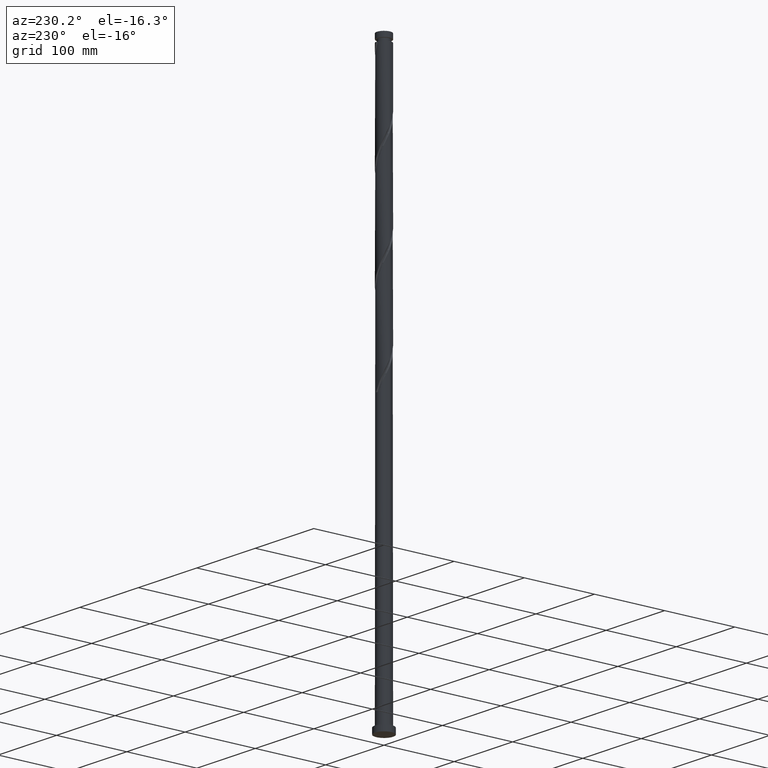
[diagram: clean part render]
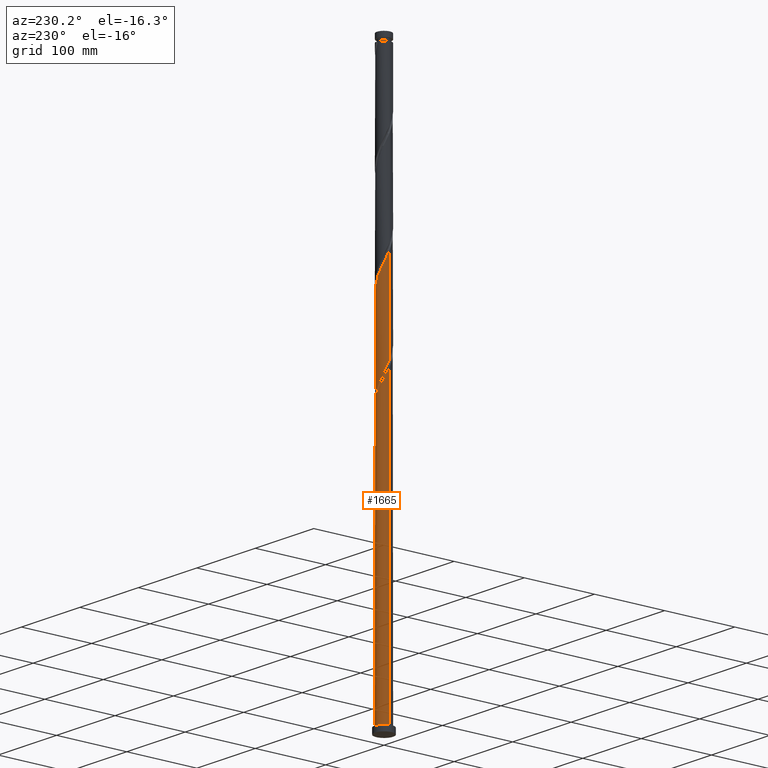
[diagram: same view with one face highlighted and labeled with its STEP entity id]
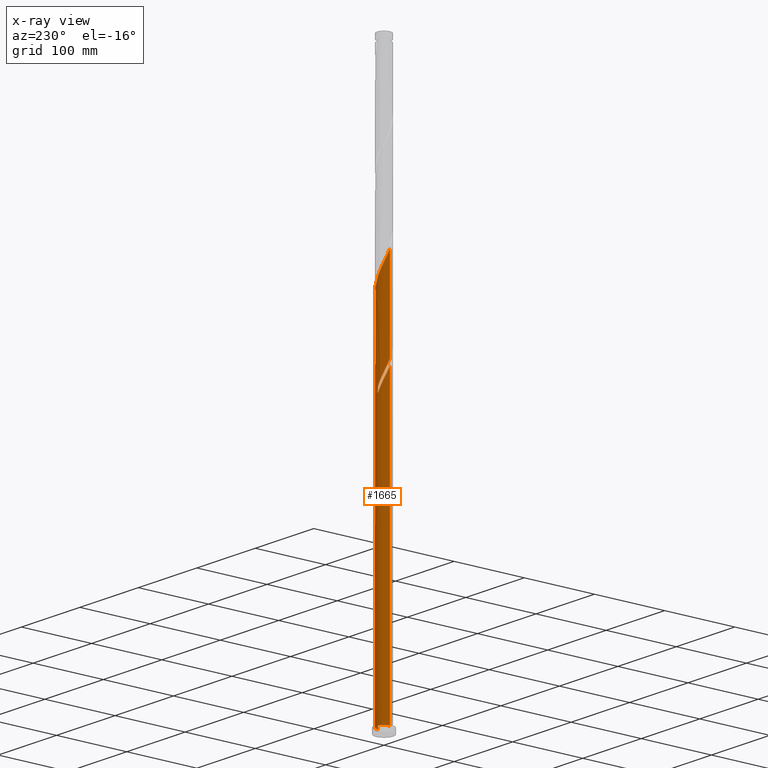
[diagram: x-ray of the same camera — body ghosted, the highlighted face saturated]
A machine part, auxiliary view. The second image highlights one B-rep face of the part: STEP entity #1665.
The next image is the same camera in x-ray: the body ghosted, the highlighted face saturated — about 0% of this face is hidden behind the body in this view.
In plain terms, the highlighted cylindrical surface (edge-blend (fillet) strip) has radius 10 mm, axis along (-0, -0, -1).
Its self-contained STEP definition (entity closure, byte-faithful):
#37 =( BOUNDED_CURVE ( )  B_SPLINE_CURVE ( 2, ( #956, #58, #1328, #681, #1006, #278, #119, #2131, #1935, #874, #645, #1585, #1925, #1185, #1195, #291, #2162, #105, #1391, #499, #486, #837, #1767 ),
 .UNSPECIFIED., .F., .T. ) 
 B_SPLINE_CURVE_WITH_KNOTS ( ( 3, 2, 2, 2, 2, 2, 2, 2, 2, 2, 2, 3 ),
 ( 0.9295295809515954355, 0.9342105263157894912, 0.9407894736842105088, 0.9473684210526315264, 0.9539473684210526550, 0.9605263157894736725, 0.9671052631578946901, 0.9736842105263158187, 0.9802631578947368363, 0.9868421052631578538, 0.9934210526315789824, 1.000000000000000000 ),
 .UNSPECIFIED. ) 
 CURVE ( )  GEOMETRIC_REPRESENTATION_ITEM ( )  RATIONAL_B_SPLINE_CURVE ( ( 0.9078162034606143127, 0.9068816855934214161, 0.9090909090909431445, 0.9059859027333700965, 0.9090909090909431445, 0.9059859027333700965, 0.9090909090909431445, 0.9059859027333700965, 0.9090909090909431445, 0.9059859027333700965, 0.9090909090909431445, 0.9059859027333700965, 0.9090909090909431445, 0.9059859027333700965, 0.9090909090909431445, 0.9059859027333700965, 0.9090909090909431445, 0.9059859027333700965, 0.9090909090909431445, 0.9059859027333700965, 0.9090909090909431445, 0.9059859027333700965, 0.9090909090909431445 ) ) 
 REPRESENTATION_ITEM ( '' )  );
#39 = VERTEX_POINT ( 'NONE', #1576 ) ;
#47 = DIRECTION ( 'NONE',  ( 0.000000000000000000, 0.000000000000000000, 1.000000000000000000 ) ) ;
#56 = CARTESIAN_POINT ( 'NONE',  ( 9.930858854084291920, 1.173900515484962215, 487.1440430362561642 ) ) ;
#58 = CARTESIAN_POINT ( 'NONE',  ( -10.00000000000000355, 0.5889864175343263453, 425.2331674211055770 ) ) ;
#66 = CARTESIAN_POINT ( 'NONE',  ( 7.115818394811946668, 7.026032206875813202, 501.1791307555545245 ) ) ;
#76 = CARTESIAN_POINT ( 'NONE',  ( -1.989974874213248146, 9.800000000000007816, 522.2317623345016955 ) ) ;
#84 = DIRECTION ( 'NONE',  ( -0.000000000000000000, -0.000000000000000000, -1.000000000000000000 ) ) ;
#105 = CARTESIAN_POINT ( 'NONE',  ( -2.121495232885088900, 9.807439782529289829, 397.6703588257300339 ) ) ;
#108 = AXIS2_PLACEMENT_3D ( 'NONE', #2216, #563, #349 ) ;
#117 = CARTESIAN_POINT ( 'NONE',  ( -10.00000000000000178, 0.000000000000000000, 8.000000000000000000 ) ) ;
#119 = CARTESIAN_POINT ( 'NONE',  ( -9.011612654811246514, 4.334839946254740894, 416.9686044397650448 ) ) ;
#126 = CARTESIAN_POINT ( 'NONE',  ( -9.292644579133634508, 3.694151692323763836, 409.9510605801158931 ) ) ;
#139 = CARTESIAN_POINT ( 'NONE',  ( -8.129196827142978421, 5.882412435103557158, 404.6879026853790151 ) ) ;
#210 = CARTESIAN_POINT ( 'NONE',  ( 0.000000000000000000, 0.000000000000000000, 8.000000000000000000 ) ) ;
#238 = CARTESIAN_POINT ( 'NONE',  ( -2.802026026230766576, 9.635105980705032991, 523.9861482994141397 ) ) ;
#249 = CARTESIAN_POINT ( 'NONE',  ( 10.00000000000000178, 1.224646799147353454E-15, 800.0000000000000000 ) ) ;
#256 = CARTESIAN_POINT ( 'NONE',  ( 10.00000000000000178, 1.224646799147353454E-15, 8.000000000000000000 ) ) ;
#258 = CARTESIAN_POINT ( 'NONE',  ( -10.00000000000001243, 0.2384733424516591593, 550.8068404486064082 ) ) ;
#277 = LINE ( 'NONE', #836, #1109 ) ;
#278 = CARTESIAN_POINT ( 'NONE',  ( -9.370807733603871981, 3.588116432185856741, 418.7229904046773754 ) ) ;
#282 = ORIENTED_EDGE ( 'NONE', *, *, #720, .F. ) ;
#291 = CARTESIAN_POINT ( 'NONE',  ( -3.706812335779576806, 9.324492448300048864, 401.1791307555547519 ) ) ;
#311 = CARTESIAN_POINT ( 'NONE',  ( -9.949134091119727685, 1.304357293080274482, 415.2142184748527711 ) ) ;
#349 = DIRECTION ( 'NONE',  ( -1.000000000000000000, 0.000000000000000000, 0.000000000000000000 ) ) ;
#397 = EDGE_CURVE ( 'NONE', #514, #1794, #400, .T. ) ;
#400 = LINE ( 'NONE', #1306, #835 ) ;
#419 = AXIS2_PLACEMENT_3D ( 'NONE', #1552, #1736, #1397 ) ;
#420 = CARTESIAN_POINT ( 'NONE',  ( 3.706812335779582135, 9.324492448300055969, 509.9510605801158931 ) ) ;
#424 = CARTESIAN_POINT ( 'NONE',  ( -3.575861195418844840, 9.338801674256604457, 392.4072009309930991 ) ) ;
#439 = CARTESIAN_POINT ( 'NONE',  ( -3.575861195418844840, 9.338801674256604457, 525.7405342643263566 ) ) ;
#448 = CARTESIAN_POINT ( 'NONE',  ( 10.00000000000001421, -3.433603888114613474E-15, 484.6464968003797935 ) ) ;
#454 = CARTESIAN_POINT ( 'NONE',  ( -4.349696364606922216, 9.042497367808174147, 394.1615868959053728 ) ) ;
#460 = CARTESIAN_POINT ( 'NONE',  ( 6.533624767495038732, 7.615665729840554121, 502.9335167204667982 ) ) ;
#479 = CARTESIAN_POINT ( 'NONE',  ( 10.00000000000001421, -3.433603888114613474E-15, 484.6464968003797935 ) ) ;
#486 = CARTESIAN_POINT ( 'NONE',  ( 0.3498072259164571318, 9.993879872436764344, 392.4072009309930991 ) ) ;
#491 = CARTESIAN_POINT ( 'NONE',  ( -7.050111913419860876, 7.140205817716167580, 401.1791307555545814 ) ) ;
#499 = CARTESIAN_POINT ( 'NONE',  ( -0.4783092703628204490, 10.02286572557855493, 394.1615868959054865 ) ) ;
#514 = VERTEX_POINT ( 'NONE', #1688 ) ;
#542 = EDGE_CURVE ( 'NONE', #1594, #1086, #2094, .T. ) ;
#543 = CARTESIAN_POINT ( 'NONE',  ( 1.989974874213252809, 9.800000000000000711, 388.8984290011685516 ) ) ;
#563 = DIRECTION ( 'NONE',  ( 0.000000000000000000, -0.000000000000000000, -1.000000000000000000 ) ) ;
#582 = ORIENTED_EDGE ( 'NONE', *, *, #653, .F. ) ;
#599 = CARTESIAN_POINT ( 'NONE',  ( -1.177923722195730827, 9.964894019294989747, 520.4773763695895923 ) ) ;
#612 = CARTESIAN_POINT ( 'NONE',  ( -7.589654370281420093, 6.511309126409864589, 536.2668500538001126 ) ) ;
#623 = CARTESIAN_POINT ( 'NONE',  ( -9.949134091119727685, 1.304357293080274482, 548.5475518081860855 ) ) ;
#627 = CARTESIAN_POINT ( 'NONE',  ( -10.00000000000000178, -2.696125487797833641E-14, 426.4836945352908515 ) ) ;
#633 = CARTESIAN_POINT ( 'NONE',  ( 9.011612654811258949, 4.334839946254741783, 494.1615868959053159 ) ) ;
#645 = CARTESIAN_POINT ( 'NONE',  ( -7.115818394811933345, 7.026032206875808761, 409.9510605801158931 ) ) ;
#653 = EDGE_CURVE ( 'NONE', #1594, #514, #997, .T. ) ;
#681 = CARTESIAN_POINT ( 'NONE',  ( -9.833586684089031138, 1.996794941299505632, 422.2317623345019229 ) ) ;
#720 = EDGE_CURVE ( 'NONE', #1639, #768, #277, .T. ) ;
#737 = ORIENTED_EDGE ( 'NONE', *, *, #2240, .F. ) ;
#768 = VERTEX_POINT ( 'NONE', #117 ) ;
#796 = CARTESIAN_POINT ( 'NONE',  ( -0.3498072259164496933, 9.993879872436775003, 518.7229904046772617 ) ) ;
#807 = CARTESIAN_POINT ( 'NONE',  ( -9.598750715611075179, 2.924141209081439818, 545.0387798783615381 ) ) ;
#815 = CARTESIAN_POINT ( 'NONE',  ( -8.557867634899585241, 5.173287305334823394, 539.7756219836247737 ) ) ;
#835 = VECTOR ( 'NONE', #1465, 1000.000000000000000 ) ;
#836 = CARTESIAN_POINT ( 'NONE',  ( -10.00000000000000178, 0.000000000000000000, 800.0000000000000000 ) ) ;
#837 = CARTESIAN_POINT ( 'NONE',  ( 1.177923722195735934, 9.964894019294979088, 390.6528149660808822 ) ) ;
#853 = CARTESIAN_POINT ( 'NONE',  ( -5.064207344787845066, 8.622865183278527468, 395.9159728608176465 ) ) ;
#874 = CARTESIAN_POINT ( 'NONE',  ( -7.698012022128840393, 6.436398683911070506, 411.7054465450283374 ) ) ;
#880 = CARTESIAN_POINT ( 'NONE',  ( -5.778718324968768805, 8.203232998748884341, 397.6703588257299202 ) ) ;
#912 = EDGE_CURVE ( 'NONE', #39, #2366, #1174, .T. ) ;
#921 = ORIENTED_EDGE ( 'NONE', *, *, #397, .F. ) ;
#950 = AXIS2_PLACEMENT_3D ( 'NONE', #210, #47, #1666 ) ;
#953 = CARTESIAN_POINT ( 'NONE',  ( 4.448914798436082840, 8.955844857759466038, 508.1966746152035626 ) ) ;
#956 = CARTESIAN_POINT ( 'NONE',  ( -10.00000000000000178, -2.696125487797833641E-14, 426.4836945352908515 ) ) ;
#977 = CARTESIAN_POINT ( 'NONE',  ( 9.370807733603886192, 3.588116432185851856, 492.4072009309930422 ) ) ;
#986 = CARTESIAN_POINT ( 'NONE',  ( -10.00000000000001421, 1.612300956158166349E-15, 551.3131634670464791 ) ) ;
#997 =( BOUNDED_CURVE ( )  B_SPLINE_CURVE ( 2, ( #448, #2106, #56, #2086, #1894, #977, #633, #1923, #2063, #1698, #66, #460, #2077, #1710, #953, #420, #1885, #1175, #1505, #2246, #796, #599, #76, #238, #439, #1516, #1911, #1337, #2258, #1347, #612, #1720, #815, #1527, #1902, #807, #2269, #623, #1164, #258, #986 ),
 .UNSPECIFIED., .F., .T. ) 
 B_SPLINE_CURVE_WITH_KNOTS ( ( 3, 2, 2, 2, 2, 2, 2, 2, 2, 2, 2, 2, 2, 2, 2, 2, 2, 2, 2, 2, 3 ),
 ( 0.1795295809515957408, 0.1842105263157894912, 0.1907894736842105088, 0.1973684210526315264, 0.2039473684210526550, 0.2105263157894736725, 0.2171052631578946901, 0.2236842105263158187, 0.2302631578947368363, 0.2368421052631578538, 0.2434210526315789824, 0.2500000000000000000, 0.2565789473684210176, 0.2631578947368421462, 0.2697368421052631637, 0.2763157894736841813, 0.2828947368421053099, 0.2894736842105263275, 0.2960526315789473450, 0.3026315789473684736, 0.3045295809515957131 ),
 .UNSPECIFIED. ) 
 CURVE ( )  GEOMETRIC_REPRESENTATION_ITEM ( )  RATIONAL_B_SPLINE_CURVE ( ( 0.9078162034606180875, 0.9068816855934254129, 0.9090909090909469192, 0.9059859027333740933, 0.9090909090909469192, 0.9059859027333740933, 0.9090909090909469192, 0.9059859027333740933, 0.9090909090909469192, 0.9059859027333740933, 0.9090909090909469192, 0.9059859027333740933, 0.9090909090909469192, 0.9059859027333740933, 0.9090909090909469192, 0.9059859027333740933, 0.9090909090909469192, 0.9059859027333740933, 0.9090909090909469192, 0.9059859027333740933, 0.9090909090909469192, 0.9059859027333740933, 0.9090909090909469192, 0.9059859027333740933, 0.9090909090909469192, 0.9059859027333740933, 0.9090909090909469192, 0.9059859027333740933, 0.9090909090909469192, 0.9059859027333740933, 0.9090909090909469192, 0.9059859027333740933, 0.9090909090909469192, 0.9059859027333740933, 0.9090909090909469192, 0.9059859027333740933, 0.9090909090909469192, 0.9059859027333740933, 0.9090909090909469192, 0.9081951262308954886, 0.9078162034606180875 ) ) 
 REPRESENTATION_ITEM ( '' )  );
#1006 = CARTESIAN_POINT ( 'NONE',  ( -9.602197208846448007, 2.792455686742680854, 420.4773763695895923 ) ) ;
#1010 = CARTESIAN_POINT ( 'NONE',  ( -7.589654370281420093, 6.511309126409864589, 402.9335167204667982 ) ) ;
#1070 = CARTESIAN_POINT ( 'NONE',  ( -9.988632557599636641, 0.4766756017049241234, 416.9686044397649880 ) ) ;
#1086 = VERTEX_POINT ( 'NONE', #256 ) ;
#1109 = VECTOR ( 'NONE', #1405, 1000.000000000000000 ) ;
#1164 = CARTESIAN_POINT ( 'NONE',  ( -9.988632557599636641, 0.4766756017049241234, 550.3019377730983024 ) ) ;
#1174 = CIRCLE ( 'NONE', #108, 10.00000000000000178 ) ;
#1175 = CARTESIAN_POINT ( 'NONE',  ( 2.121495232885097781, 9.807439782529295158, 513.4598325099402700 ) ) ;
#1185 = CARTESIAN_POINT ( 'NONE',  ( -5.191017261092578217, 8.587197267218870778, 404.6879026853790720 ) ) ;
#1195 = CARTESIAN_POINT ( 'NONE',  ( -4.448914798436078399, 8.955844857759458932, 402.9335167204667414 ) ) ;
#1202 = FACE_OUTER_BOUND ( 'NONE', #1612, .T. ) ;
#1205 = ORIENTED_EDGE ( 'NONE', *, *, #1816, .F. ) ;
#1251 = ORIENTED_EDGE ( 'NONE', *, *, #1890, .T. ) ;
#1306 = CARTESIAN_POINT ( 'NONE',  ( -10.00000000000000178, 0.000000000000000000, 800.0000000000000000 ) ) ;
#1328 = CARTESIAN_POINT ( 'NONE',  ( -9.930858854084283038, 1.173900515484967322, 423.9861482994141397 ) ) ;
#1337 = CARTESIAN_POINT ( 'NONE',  ( -5.778718324968768805, 8.203232998748884341, 531.0036921590632346 ) ) ;
#1347 = CARTESIAN_POINT ( 'NONE',  ( -7.050111913419860876, 7.140205817716167580, 534.5124640888878957 ) ) ;
#1361 = CARTESIAN_POINT ( 'NONE',  ( -2.802026026230766576, 9.635105980705032991, 390.6528149660808253 ) ) ;
#1391 = CARTESIAN_POINT ( 'NONE',  ( -1.299902251623954896, 9.915152754053920603, 395.9159728608176465 ) ) ;
#1397 = DIRECTION ( 'NONE',  ( -1.000000000000000000, 0.000000000000000000, 0.000000000000000000 ) ) ;
#1405 = DIRECTION ( 'NONE',  ( -0.000000000000000000, -0.000000000000000000, -1.000000000000000000 ) ) ;
#1441 = CARTESIAN_POINT ( 'NONE',  ( -8.986538442656190284, 4.464162175566086965, 408.1966746152035626 ) ) ;
#1465 = DIRECTION ( 'NONE',  ( -0.000000000000000000, -0.000000000000000000, -1.000000000000000000 ) ) ;
#1505 = CARTESIAN_POINT ( 'NONE',  ( 1.299902251623959337, 9.915152754053927708, 515.2142184748527143 ) ) ;
#1516 = CARTESIAN_POINT ( 'NONE',  ( -4.349696364606922216, 9.042497367808174147, 527.4949202292386872 ) ) ;
#1527 = CARTESIAN_POINT ( 'NONE',  ( -8.986538442656190284, 4.464162175566086965, 541.5300079485368769 ) ) ;
#1541 = CARTESIAN_POINT ( 'NONE',  ( -1.989974874213248146, 9.800000000000007816, 388.8984290011685516 ) ) ;
#1552 = CARTESIAN_POINT ( 'NONE',  ( 0.000000000000000000, 0.000000000000000000, 800.0000000000000000 ) ) ;
#1576 = CARTESIAN_POINT ( 'NONE',  ( -1.989974874213248146, 9.800000000000007816, 388.8984290011685516 ) ) ;
#1585 = CARTESIAN_POINT ( 'NONE',  ( -6.533624767495032515, 7.615665729840548792, 408.1966746152037331 ) ) ;
#1590 = CARTESIAN_POINT ( 'NONE',  ( -10.00000000000001243, 0.2384733424516731204, 417.4735071152729233 ) ) ;
#1594 = VERTEX_POINT ( 'NONE', #479 ) ;
#1601 = ORIENTED_EDGE ( 'NONE', *, *, #542, .T. ) ;
#1609 = CYLINDRICAL_SURFACE ( 'NONE', #419, 10.00000000000000178 ) ;
#1612 = EDGE_LOOP ( 'NONE', ( #582, #1601, #1251, #282, #1205, #1988, #737, #921 ) ) ;
#1624 = CARTESIAN_POINT ( 'NONE',  ( -10.00000000000001421, 1.612300956158166349E-15, 417.9798301337130511 ) ) ;
#1639 = VERTEX_POINT ( 'NONE', #2292 ) ;
#1643 = VECTOR ( 'NONE', #84, 1000.000000000000000 ) ;
#1665 = ADVANCED_FACE ( 'NONE', ( #1202 ), #1609, .T. ) ;
#1666 = DIRECTION ( 'NONE',  ( 1.000000000000000000, 0.000000000000000000, 0.000000000000000000 ) ) ;
#1681 = CIRCLE ( 'NONE', #950, 10.00000000000000178 ) ;
#1688 = CARTESIAN_POINT ( 'NONE',  ( -10.00000000000001421, 1.612300956158166349E-15, 551.3131634670464791 ) ) ;
#1698 = CARTESIAN_POINT ( 'NONE',  ( 7.698012022128849274, 6.436398683911067842, 499.4247447906423076 ) ) ;
#1710 = CARTESIAN_POINT ( 'NONE',  ( 5.191017261092587098, 8.587197267218869001, 506.4422886502912888 ) ) ;
#1720 = CARTESIAN_POINT ( 'NONE',  ( -8.129196827142978421, 5.882412435103557158, 538.0212360187123295 ) ) ;
#1736 = DIRECTION ( 'NONE',  ( -0.000000000000000000, -0.000000000000000000, -1.000000000000000000 ) ) ;
#1767 = CARTESIAN_POINT ( 'NONE',  ( 1.989974874213252809, 9.800000000000000711, 388.8984290011686085 ) ) ;
#1773 = CARTESIAN_POINT ( 'NONE',  ( -6.414415119194313064, 7.671719408232525517, 399.4247447906421939 ) ) ;
#1794 = VERTEX_POINT ( 'NONE', #627 ) ;
#1816 = EDGE_CURVE ( 'NONE', #39, #1639, #2251, .T. ) ;
#1885 = CARTESIAN_POINT ( 'NONE',  ( 2.914153784332342845, 9.565966115414672899, 511.7054465450281668 ) ) ;
#1890 = EDGE_CURVE ( 'NONE', #1086, #768, #1681, .T. ) ;
#1894 = CARTESIAN_POINT ( 'NONE',  ( 9.602197208846458665, 2.792455686742682186, 490.6528149660807685 ) ) ;
#1902 = CARTESIAN_POINT ( 'NONE',  ( -9.292644579133634508, 3.694151692323763836, 543.2843939134492075 ) ) ;
#1911 = CARTESIAN_POINT ( 'NONE',  ( -5.064207344787845066, 8.622865183278527468, 529.2493061941509040 ) ) ;
#1923 = CARTESIAN_POINT ( 'NONE',  ( 8.652417576018637035, 5.081563460323630821, 495.9159728608175897 ) ) ;
#1925 = CARTESIAN_POINT ( 'NONE',  ( -5.862321014293805810, 8.101431498529709785, 406.4422886502913457 ) ) ;
#1935 = CARTESIAN_POINT ( 'NONE',  ( -8.175214799073732053, 5.758981072117348887, 413.4598325099404974 ) ) ;
#1955 = CARTESIAN_POINT ( 'NONE',  ( -8.557867634899585241, 5.173287305334823394, 406.4422886502912320 ) ) ;
#1988 = ORIENTED_EDGE ( 'NONE', *, *, #912, .T. ) ;
#2063 = CARTESIAN_POINT ( 'NONE',  ( 8.175214799073742711, 5.758981072117353328, 497.6703588257298634 ) ) ;
#2077 = CARTESIAN_POINT ( 'NONE',  ( 5.862321014293816468, 8.101431498529711561, 504.6879026853791288 ) ) ;
#2086 = CARTESIAN_POINT ( 'NONE',  ( 9.833586684089031138, 1.996794941299503634, 488.8984290011684948 ) ) ;
#2094 = LINE ( 'NONE', #249, #1643 ) ;
#2106 = CARTESIAN_POINT ( 'NONE',  ( 10.00000000000001243, 0.5889864175343574315, 485.8970239145650112 ) ) ;
#2131 = CARTESIAN_POINT ( 'NONE',  ( -8.652417576018629930, 5.081563460323629933, 415.2142184748527711 ) ) ;
#2137 = CARTESIAN_POINT ( 'NONE',  ( -9.598750715611075179, 2.924141209081439818, 411.7054465450282237 ) ) ;
#2162 = CARTESIAN_POINT ( 'NONE',  ( -2.914153784332332631, 9.565966115414667570, 399.4247447906422508 ) ) ;
#2216 = CARTESIAN_POINT ( 'NONE',  ( 0.000000000000000000, 0.000000000000000000, 388.8984290011686085 ) ) ;
#2240 = EDGE_CURVE ( 'NONE', #1794, #2366, #37, .T. ) ;
#2246 = CARTESIAN_POINT ( 'NONE',  ( 0.4783092703628226139, 10.02286572557856204, 516.9686044397649312 ) ) ;
#2251 =( BOUNDED_CURVE ( )  B_SPLINE_CURVE ( 2, ( #1541, #1361, #424, #454, #853, #880, #1773, #491, #1010, #139, #1955, #1441, #126, #2137, #2361, #311, #1070, #1590, #1624 ),
 .UNSPECIFIED., .F., .T. ) 
 B_SPLINE_CURVE_WITH_KNOTS ( ( 3, 2, 2, 2, 2, 2, 2, 2, 2, 3 ),
 ( 0.000000000000000000, 0.006578947368421017572, 0.01315789473684214617, 0.01973684210526316374, 0.02631578947368418131, 0.03289473684210530990, 0.03947368421052632748, 0.04605263157894734505, 0.05263157894736847364, 0.05452958095159560203 ),
 .UNSPECIFIED. ) 
 CURVE ( )  GEOMETRIC_REPRESENTATION_ITEM ( )  RATIONAL_B_SPLINE_CURVE ( ( 0.9090909090909469192, 0.9059859027333740933, 0.9090909090909469192, 0.9059859027333740933, 0.9090909090909469192, 0.9059859027333740933, 0.9090909090909469192, 0.9059859027333740933, 0.9090909090909469192, 0.9059859027333740933, 0.9090909090909469192, 0.9059859027333740933, 0.9090909090909469192, 0.9059859027333740933, 0.9090909090909469192, 0.9059859027333740933, 0.9090909090909469192, 0.9081951262308955997, 0.9078162034606180875 ) ) 
 REPRESENTATION_ITEM ( '' )  );
#2258 = CARTESIAN_POINT ( 'NONE',  ( -6.414415119194313064, 7.671719408232525517, 532.7580781239754515 ) ) ;
#2269 = CARTESIAN_POINT ( 'NONE',  ( -9.773942403365401432, 2.114249251080857483, 546.7931658432738686 ) ) ;
#2292 = CARTESIAN_POINT ( 'NONE',  ( -10.00000000000001421, 1.612300956158166349E-15, 417.9798301337130511 ) ) ;
#2361 = CARTESIAN_POINT ( 'NONE',  ( -9.773942403365401432, 2.114249251080857483, 413.4598325099404406 ) ) ;
#2366 = VERTEX_POINT ( 'NONE', #543 ) ;